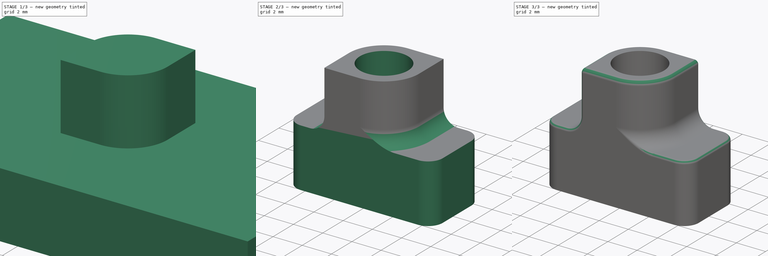
[diagram: build sequence overview — one tinted view per stage of 3, left to right]
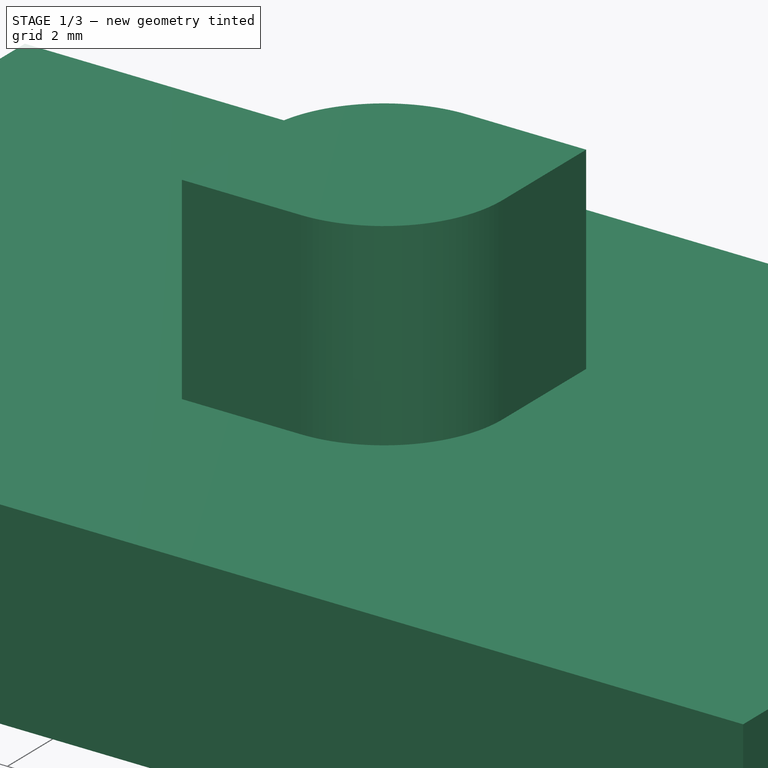
[diagram: stage 1 of 3 — iso view after this stage's code; geometry added in this stage tinted green]
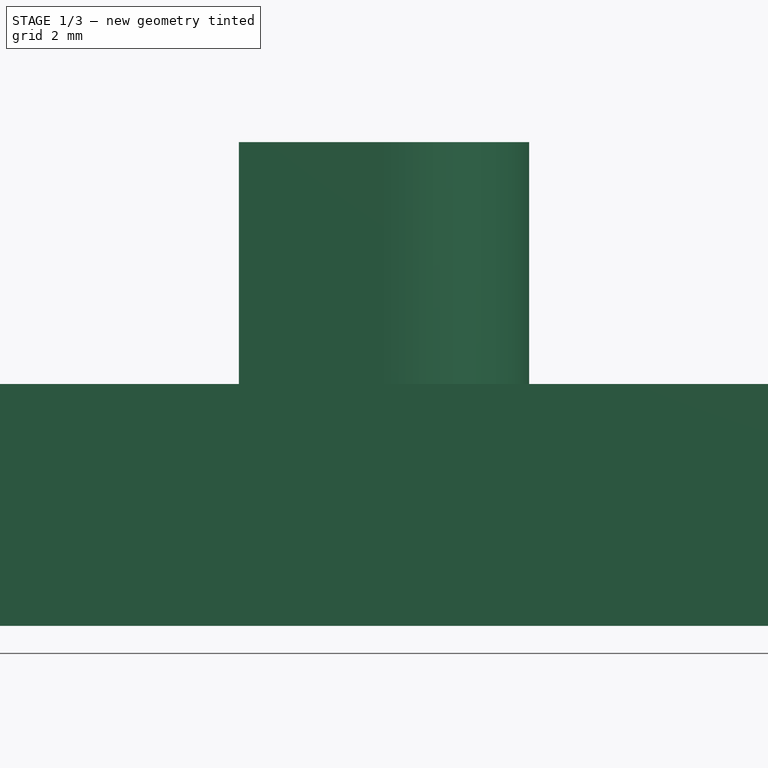
[diagram: stage 1 of 3 — front view after this stage's code; geometry added in this stage tinted green]
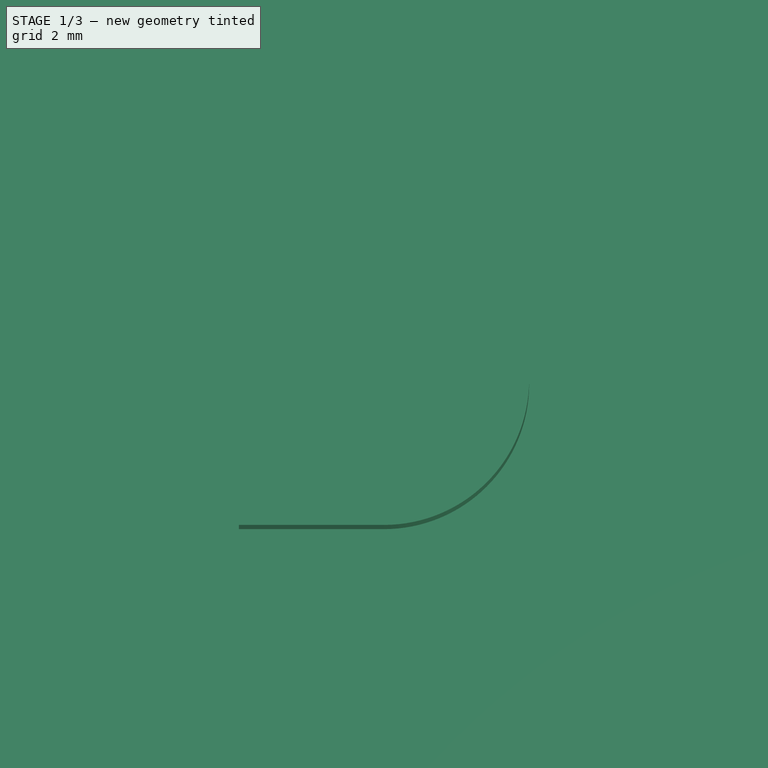
[diagram: stage 1 of 3 — top view after this stage's code; geometry added in this stage tinted green]
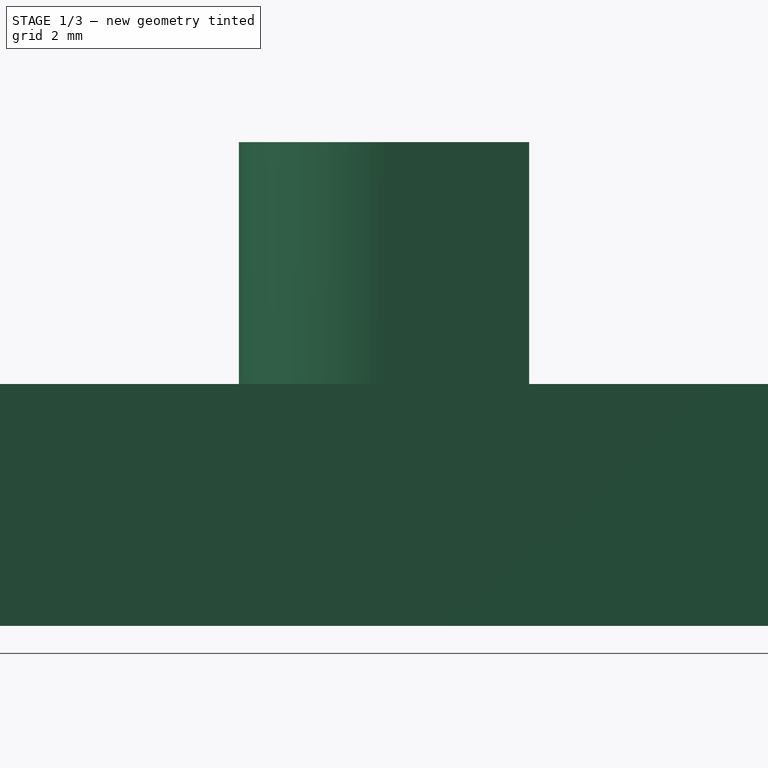
[diagram: stage 1 of 3 — right view after this stage's code; geometry added in this stage tinted green]
FCSTD DOCUMENT  (FreeCAD 0.21R30287 +2 (Git))
Label: Skadis-T-nut-M4
License: All rights reserved
LicenseURL: http://en.wikipedia.org/wiki/All_rights_reserved
objects: Sketcher::SketchObject×4, PartDesign::Fillet×3, PartDesign::Pad×2, PartDesign::Hole×1, PartDesign::Pocket×1, PartDesign::Body×1, App::FeaturePython×1
note: 19 computed .brp shape members not serialized (recipe doc carries the construction recipe); baked Part::Feature solids carry a one-line shape summary decoded from their .brp

FEATURE [Sketcher::SketchObject] Sketch  label="SkBlock"
  FullyConstrained = true
  MapMode = 5
  Support = -> [XY_Plane]
  sketch-geometry (4):
    g0: LineSegment StartX=-12.5 StartY=7.5 StartZ=0 EndX=12.5 EndY=7.5 EndZ=0
    g1: LineSegment StartX=12.5 StartY=7.5 StartZ=0 EndX=12.5 EndY=-7.5 EndZ=0
    g2: LineSegment StartX=12.5 StartY=-7.5 StartZ=0 EndX=-12.5 EndY=-7.5 EndZ=0
    g3: LineSegment StartX=-12.5 StartY=-7.5 StartZ=0 EndX=-12.5 EndY=7.5 EndZ=0
  constraints (11):
    c: Coincident(g0,g1)
    c: Coincident(g1,g2)
    c: Coincident(g2,g3)
    c: Coincident(g3,g0)
    c: Horizontal(g0)
    c: Horizontal(g2)
    c: Vertical(g1)
    c: Vertical(g3)
    c: Symmetric(g0,g1,g-1)
    c: DistanceX(g2,g2) = 25
    c: DistanceY(g1,g1) = 15
FEATURE [PartDesign::Pad] Pad  label="Block"
  Direction = (0,0,1)
  Length = 4
  Length2 = 10
  Profile = -> Sketch
  ReferenceAxis = -> Sketch [N_Axis]
  Refine = true
  Type = 0
  expr: Length = <<Parameter>>.ddBaseHeight
FEATURE [Sketcher::SketchObject] Sketch001  label="SkChimney"
  AttachmentOffset = pos=(0,0,4) rot=(0,0,1;0rad)
  FullyConstrained = true
  MapMode = 5
  Placement = pos=(0,0,4) rot=(0,0,1;0rad)
  Support = -> [XY_Plane]
  expr: .AttachmentOffset.Base.z = <<Block>>.Length
  expr: Constraints[12] = <<Parameter>>.ddWidth / 2
  sketch-geometry (6):
    g0: LineSegment StartX=2.4 StartY=2.4 StartZ=0 EndX=2.4 EndY=-4e-16 EndZ=0
    g1: ArcOfCircle CenterX=3e-16 CenterY=3e-16 CenterZ=0 NormalX=0 NormalY=0 NormalZ=1 AngleXU=0 Radius=2.4 StartAngle=4.71239 EndAngle=6.28319
    g2: LineSegment StartX=-1e-16 StartY=-2.4 StartZ=0 EndX=-2.4 EndY=-2.4 EndZ=0
    g3: LineSegment StartX=-2.4 StartY=-2.4 StartZ=0 EndX=-2.4 EndY=-4e-16 EndZ=0
    g4: ArcOfCircle CenterX=3e-16 CenterY=3e-16 CenterZ=0 NormalX=0 NormalY=0 NormalZ=1 AngleXU=0 Radius=2.4 StartAngle=1.5708 EndAngle=3.14159
    g5: LineSegment StartX=-1e-16 StartY=2.4 StartZ=0 EndX=2.4 EndY=2.4 EndZ=0
  constraints (15):
    c: PointOnObject(g0,g-1)
    c: Vertical(g0)
    c: Tangent(g0,g1) = 1.5708
    c: Tangent(g1,g2) = 1.5708
    c: Coincident(g2,g3)
    c: PointOnObject(g3,g-1)
    c: Tangent(g3,g4) = 1.5708
    c: PointOnObject(g4,g-2)
    c: Tangent(g4,g5) = 1.5708
    c: Coincident(g5,g0)
    c: Horizontal(g5)
    c: Horizontal(g2)
    c: Radius(g1) = 2.4
    c: Coincident(g1,g4)
    c: Equal(g4,g1)
FEATURE [PartDesign::Pad] Pad001  label="Chimney"
  BaseFeature = -> Pad
  Direction = (0,0,1)
  Length = 4
  Length2 = 10
  Profile = -> Sketch001
  ReferenceAxis = -> Sketch001 [N_Axis]
  Type = 0
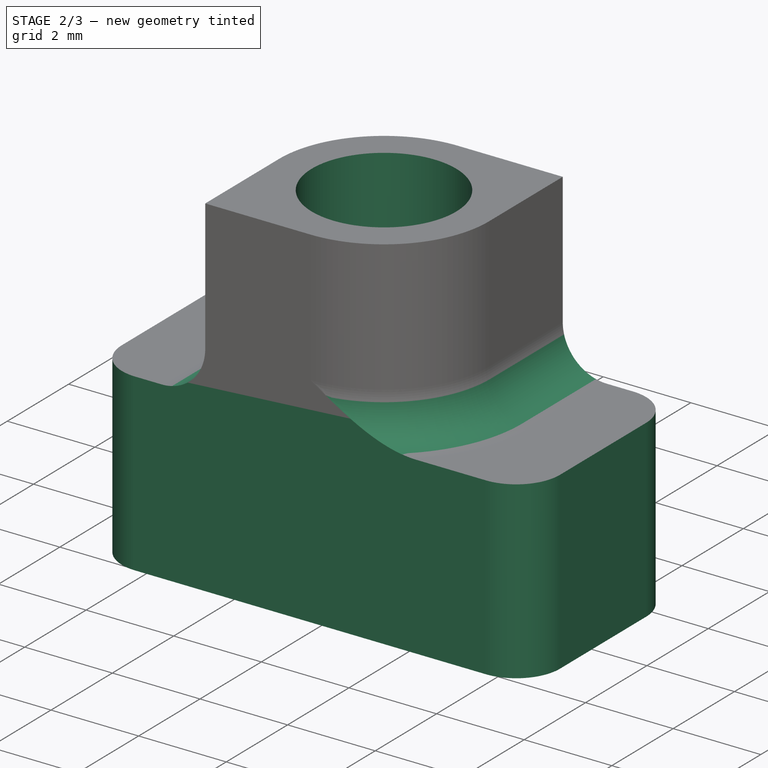
[diagram: stage 2 of 3 — iso view after this stage's code; geometry added in this stage tinted green]
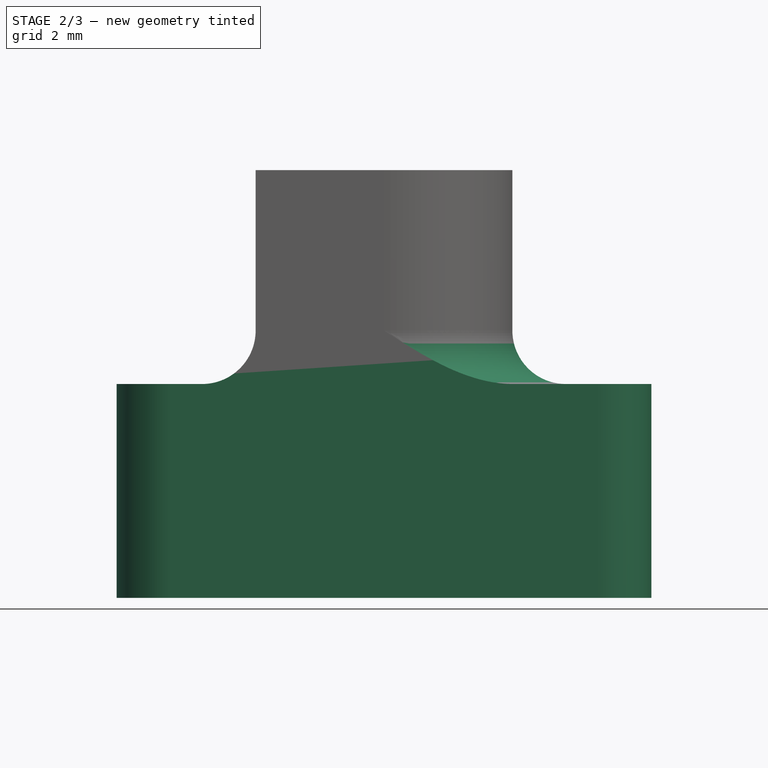
[diagram: stage 2 of 3 — front view after this stage's code; geometry added in this stage tinted green]
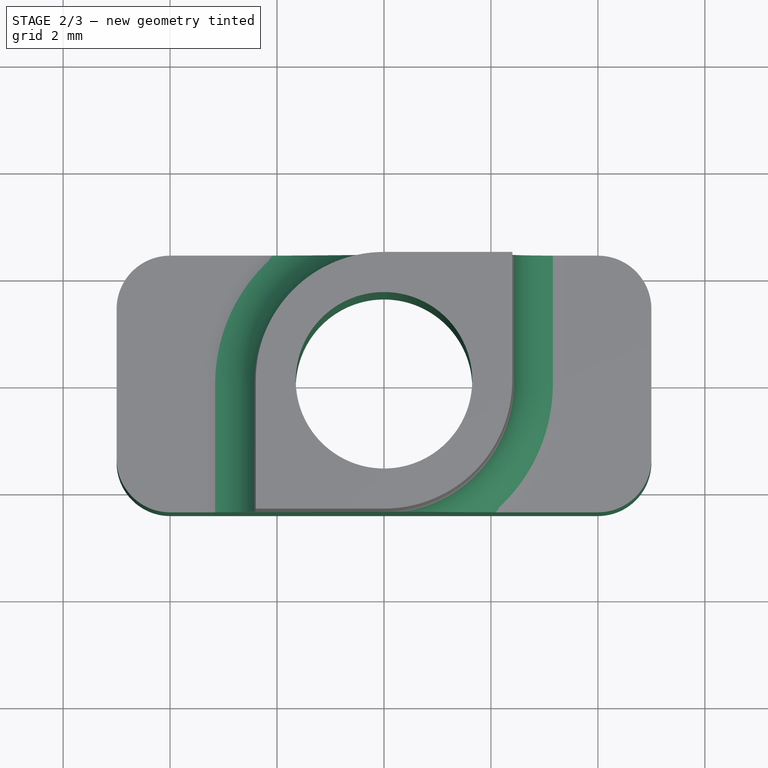
[diagram: stage 2 of 3 — top view after this stage's code; geometry added in this stage tinted green]
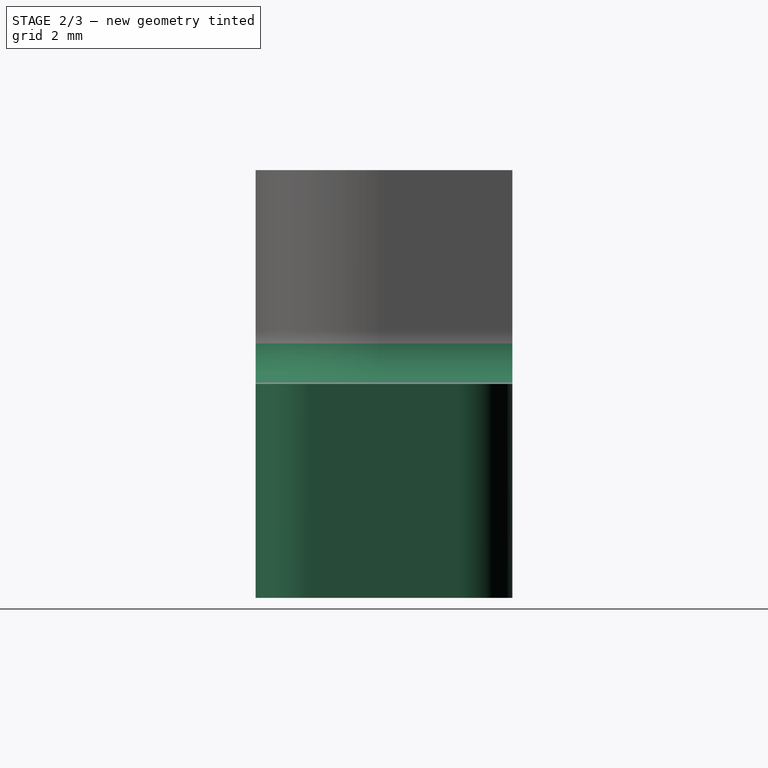
[diagram: stage 2 of 3 — right view after this stage's code; geometry added in this stage tinted green]
FEATURE [Sketcher::SketchObject] Sketch002  label="SkHole"
  FullyConstrained = true
  MapMode = 5
  Placement = pos=(0,0,0) rot=(0,1,0;3.14159rad)
  Support = -> [XY_Plane]
  sketch-geometry (1):
    g0: Circle CenterX=0 CenterY=0 CenterZ=0 NormalX=0 NormalY=0 NormalZ=1 AngleXU=0 Radius=1.5
  constraints (2):
    c: Coincident(g0,g-1)
    c: Diameter(g0) = 3
FEATURE [PartDesign::Hole] Hole
  BaseFeature = -> Pad001
  CustomThreadClearance = 0
  Depth = 25
  DepthType = 0
  Diameter = 3.3
  DrillForDepth = false
  DrillPoint = 1
  DrillPointAngle = 118
  HoleCutCountersinkAngle = 90
  HoleCutCustomValues = false
  HoleCutDepth = 0
  HoleCutDiameter = 6.1
  HoleCutType = 0
  ModelThread = false
  Profile = -> Sketch002
  Tapered = false
  TaperedAngle = 90
  ThreadClass = 0
  ThreadDepth = 25
  ThreadDepthType = 0
  ThreadDirection = 0
  ThreadFit = 0
  ThreadSize = 11
  ThreadType = 1
  Threaded = true
  UseCustomThreadClearance = false
FEATURE [PartDesign::Fillet] Fillet  label="BaseFillet"
  Base = -> Hole [Edge19,Edge16]
  BaseFeature = -> Hole
  Radius = 1
  Refine = true
  SupportTransform = false
  UseAllEdges = false
FEATURE [Sketcher::SketchObject] Sketch003  label="SkCut"
  FullyConstrained = true
  MapMode = 5
  Support = -> [XY_Plane]
  expr: Constraints[13] = <<Parameter>>.ddLength
  expr: Constraints[14] = <<Parameter>>.ddWidth
  sketch-geometry (16):
    g0: LineSegment StartX=-25 StartY=25 StartZ=0 EndX=25 EndY=25 EndZ=0
    g1: LineSegment StartX=25 StartY=25 StartZ=0 EndX=25 EndY=-25 EndZ=0
    g2: LineSegment StartX=25 StartY=-25 StartZ=0 EndX=-25 EndY=-25 EndZ=0
    g3: LineSegment StartX=-25 StartY=-25 StartZ=0 EndX=-25 EndY=25 EndZ=0
    g4: LineSegment StartX=-5 StartY=1.4 StartZ=0 EndX=-5 EndY=-1.4 EndZ=0
    g5: LineSegment StartX=-4 StartY=-2.4 StartZ=0 EndX=4 EndY=-2.4 EndZ=0
    g6: LineSegment StartX=5 StartY=-1.4 StartZ=0 EndX=5 EndY=1.4 EndZ=0
    g7: LineSegment StartX=4 StartY=2.4 StartZ=0 EndX=-4 EndY=2.4 EndZ=0
    g8: GeomPoint X=-1e-16 Y=1e-16 Z=0
    g9: ArcOfCircle CenterX=-4 CenterY=1.4 CenterZ=0 NormalX=0 NormalY=0 NormalZ=1 AngleXU=0 Radius=1 StartAngle=1.5708 EndAngle=3.14159
    g10: ArcOfCircle CenterX=-4 CenterY=-1.4 CenterZ=0 NormalX=0 NormalY=0 NormalZ=1 AngleXU=0 Radius=1 StartAngle=3.14159 EndAngle=4.71239
    g11: GeomPoint X=-5 Y=-2.4 Z=0
    g12: ArcOfCircle CenterX=4 CenterY=1.4 CenterZ=0 NormalX=0 NormalY=0 NormalZ=1 AngleXU=0 Radius=1 StartAngle=0 EndAngle=1.5708
    g13: GeomPoint X=5 Y=2.4 Z=0
    g14: ArcOfCircle CenterX=4 CenterY=-1.4 CenterZ=0 NormalX=0 NormalY=0 NormalZ=1 AngleXU=0 Radius=1 StartAngle=4.71239 EndAngle=6.28319
    g15: GeomPoint X=5 Y=-2.4 Z=0
  constraints (37):
    c: Coincident(g0,g1)
    c: Coincident(g1,g2)
    c: Coincident(g2,g3)
    c: Coincident(g3,g0)
    c: Horizontal(g0)
    c: Horizontal(g2)
    c: Vertical(g1)
    c: Vertical(g3)
    c: Horizontal(g5)
    c: Horizontal(g7)
    c: Vertical(g4)
    c: Vertical(g6)
    c: Coincident(g8,g-1)
    c: DistanceX(g11,g15) = 10
    c: DistanceY(g15,g13) = 4.8
    c: Tangent(g4,g9) = -1.5708
    c: Tangent(g7,g9) = -1.5708
    c: PointOnObject(g11,g4)
    c: PointOnObject(g11,g5)
    c: Tangent(g4,g10) = -1.5708
    c: Tangent(g5,g10) = -1.5708
    c: PointOnObject(g13,g6)
    c: PointOnObject(g13,g7)
    c: Tangent(g6,g12) = -1.5708
    c: Tangent(g7,g12) = -1.5708
    c: PointOnObject(g15,g5)
    c: PointOnObject(g15,g6)
    c: Tangent(g5,g14) = -1.5708
    c: Tangent(g6,g14) = -1.5708
    c: Equal(g12,g14)
    c: Equal(g12,g10)
    c: Radius(g12) = 1
    c: Equal(g12,g9)
    c: Symmetric(g10,g12,g8)
    c: Symmetric(g0,g1,g8)
    c: Equal(g2,g1)
    c: DistanceX(g2,g2) = 50
FEATURE [PartDesign::Pocket] Pocket  label="CutToSize"
  BaseFeature = -> Fillet
  Direction = (0,0,-1)
  Inverse = false
  Length = 5
  Length2 = 5
  Profile = -> Sketch003
  ReferenceAxis = -> Sketch003 [N_Axis]
  Reversed = true
  Type = 1
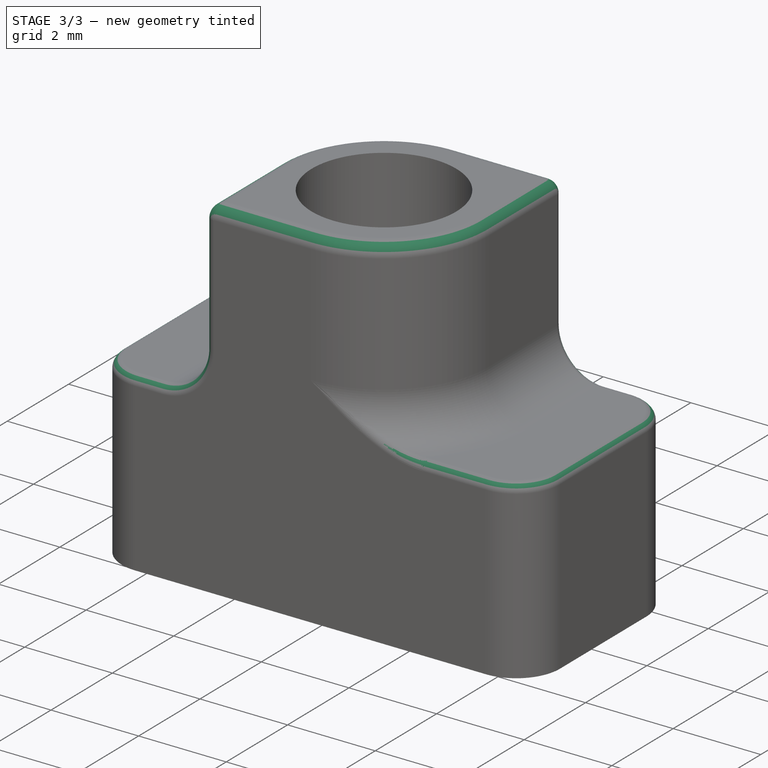
[diagram: stage 3 of 3 — iso view after this stage's code; geometry added in this stage tinted green]
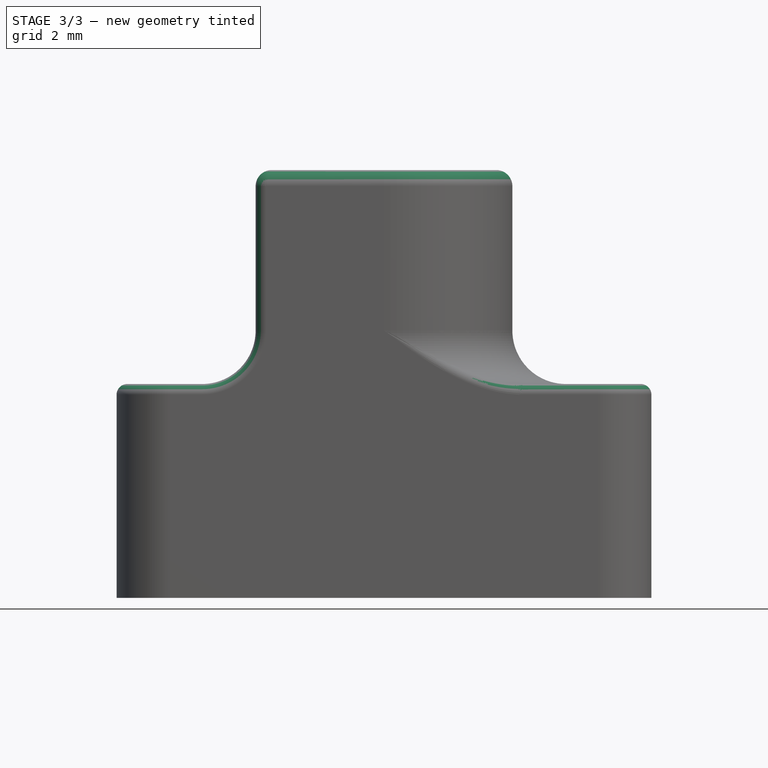
[diagram: stage 3 of 3 — front view after this stage's code; geometry added in this stage tinted green]
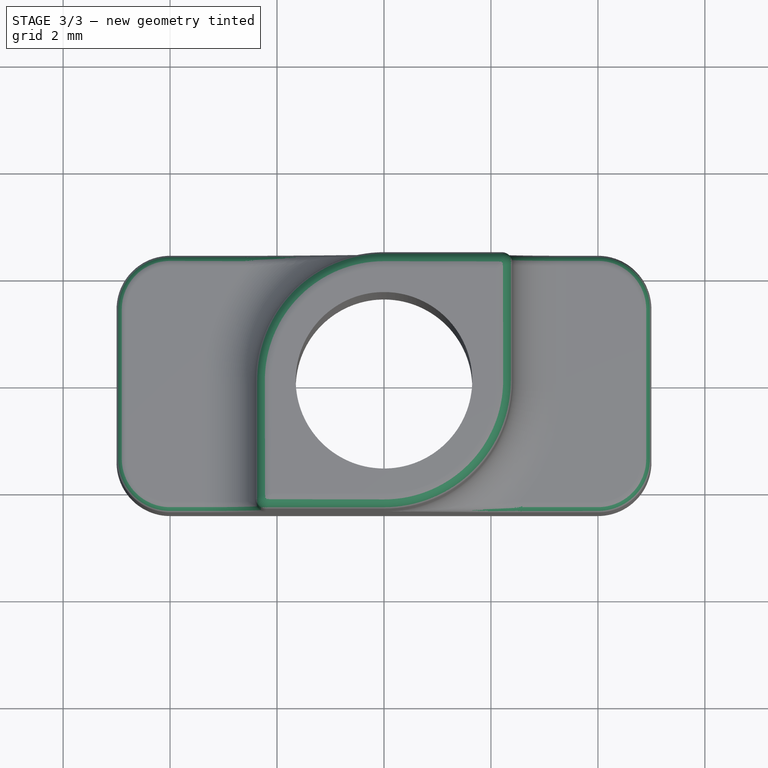
[diagram: stage 3 of 3 — top view after this stage's code; geometry added in this stage tinted green]
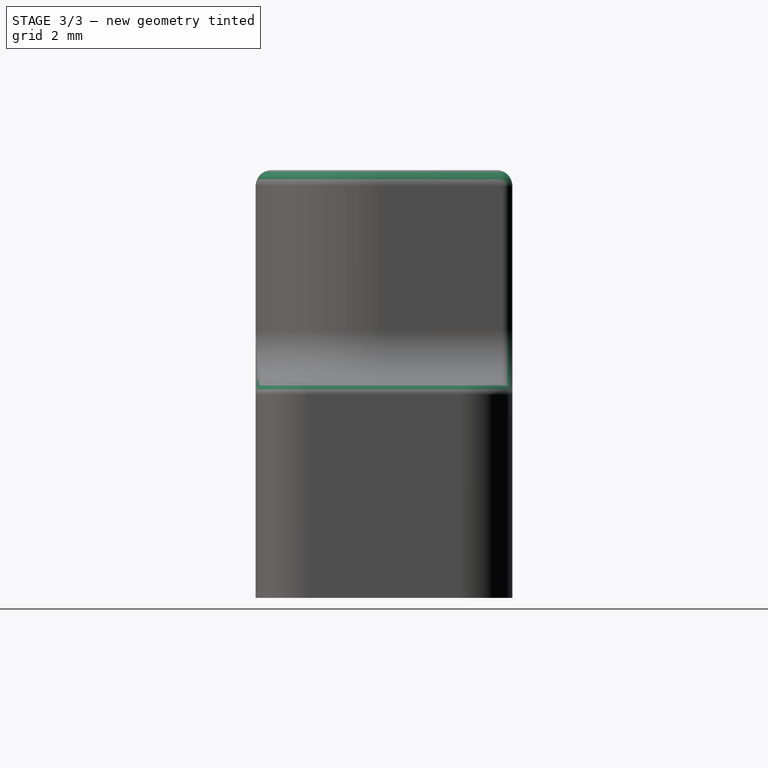
[diagram: stage 3 of 3 — right view after this stage's code; geometry added in this stage tinted green]
FEATURE [PartDesign::Fillet] Fillet001  label="Fillettop"
  Base = -> Pocket [Edge48,Edge34]
  BaseFeature = -> Pocket
  Radius = 0.3
  SupportTransform = false
  UseAllEdges = false
FEATURE [PartDesign::Fillet] Fillet002  label="EdgesFillet"
  Base = -> Fillet001 [Edge14,Edge7]
  BaseFeature = -> Fillet001
  Radius = 0.2
  Refine = true
  SupportTransform = false
  UseAllEdges = false
FEATURE [PartDesign::Body] Body
  Group = -> [Sketch,Pad,Sketch001,Pad001,Sketch002,Hole,Fillet,Sketch003,Pocket,Fillet001,Fillet002]
  Origin = -> Origin
  Tip = -> Fillet002
FEATURE [App::FeaturePython] dd  label="Parameter"  # WARN: FeaturePython — macro-defined, semantics opaque (R4)
  DynamicData = Created with DynamicData (v2.46) workbench. | This is a simple container object built | for holding custom properties.
  ddBaseHeight = 4
  ddLength = 10
  ddWidth = 4.8
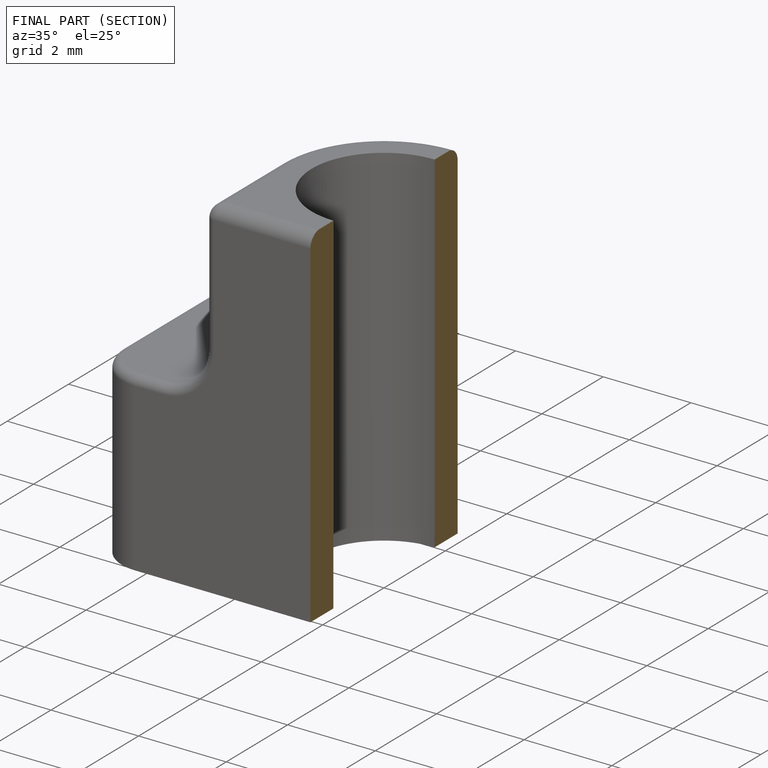
[diagram: finished part — half-section view (interior)]
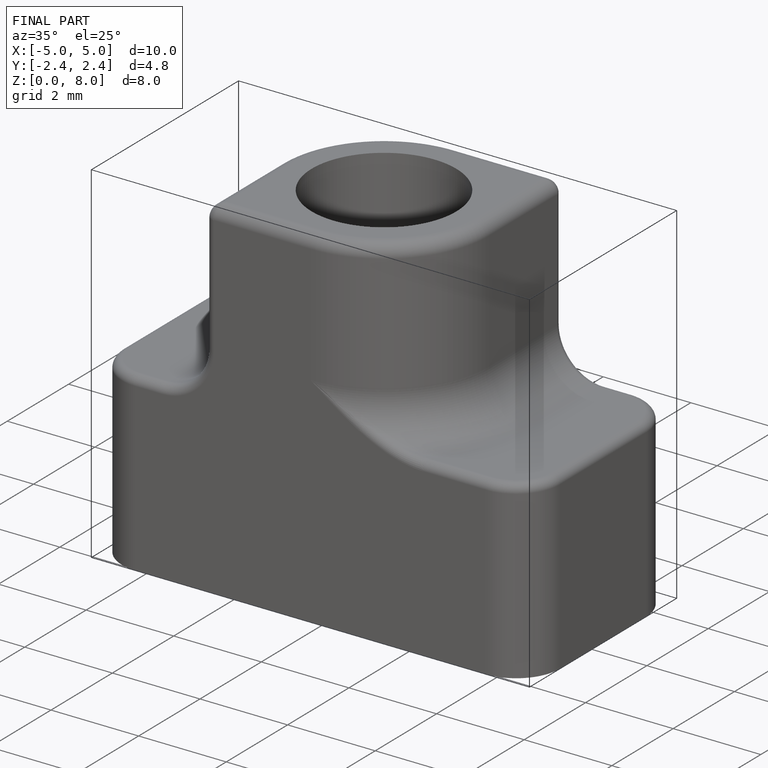
[diagram: finished part — iso view with bounding-box wireframe]
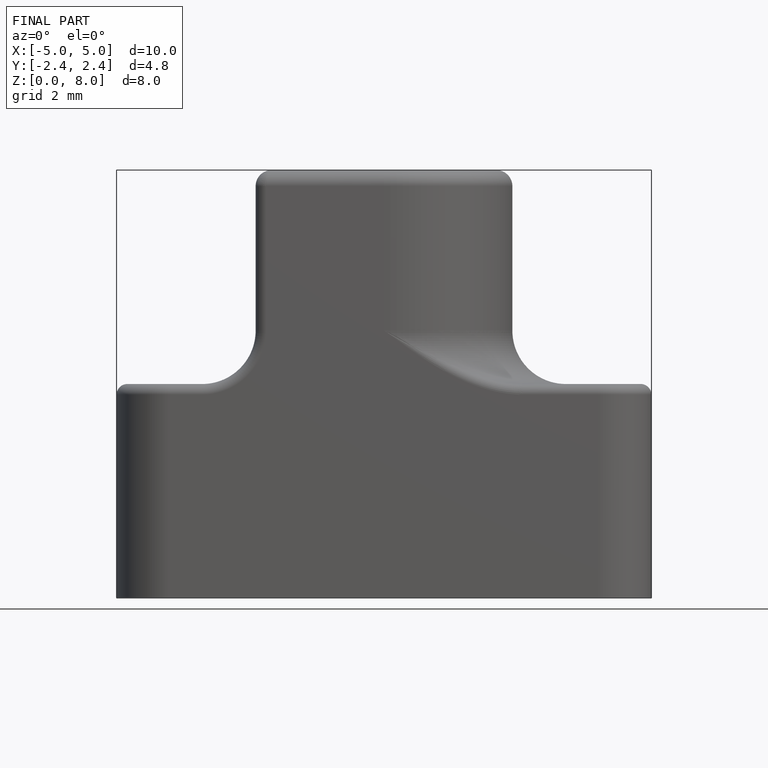
[diagram: finished part — front view with bounding-box wireframe]
